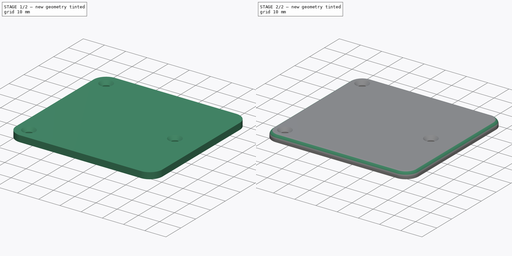
[diagram: build sequence overview — one tinted view per stage of 2, left to right]
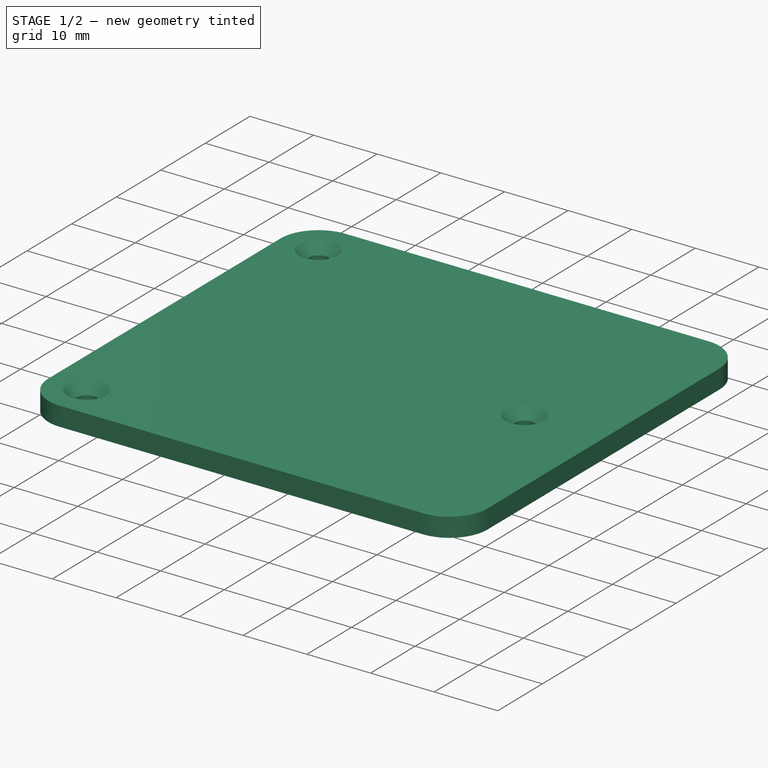
[diagram: stage 1 of 2 — iso view after this stage's code; geometry added in this stage tinted green]
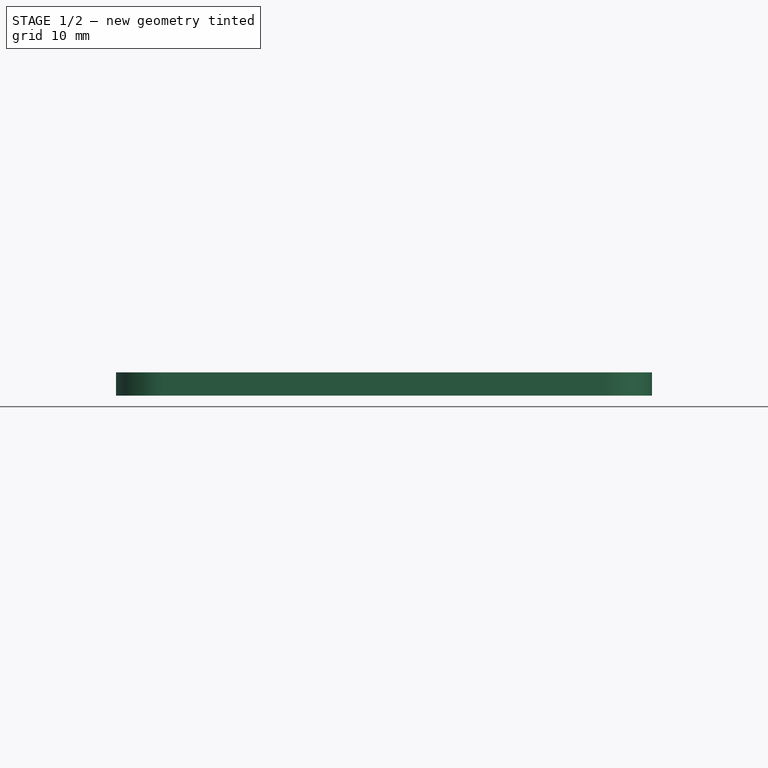
[diagram: stage 1 of 2 — front view after this stage's code; geometry added in this stage tinted green]
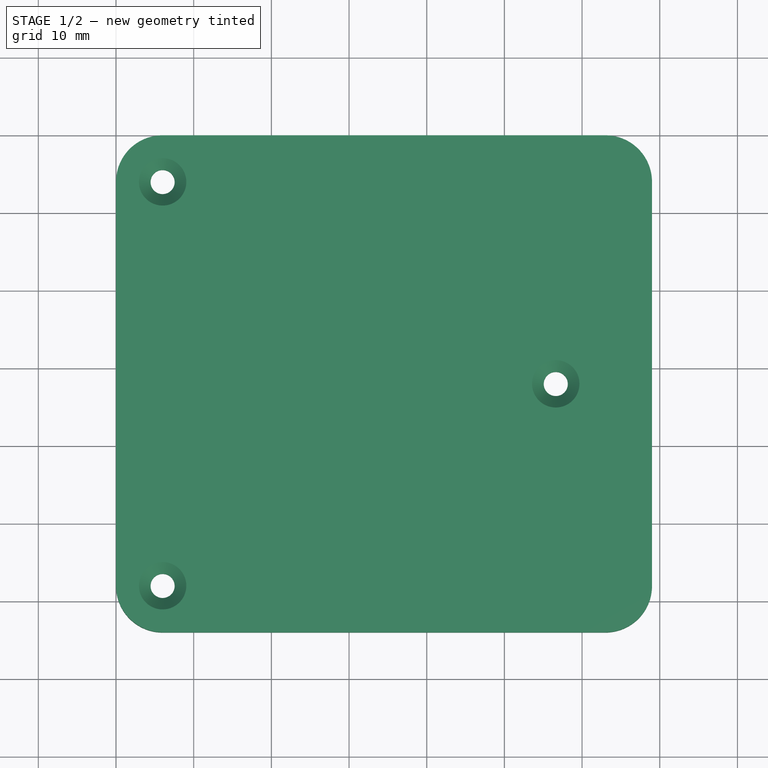
[diagram: stage 1 of 2 — top view after this stage's code; geometry added in this stage tinted green]
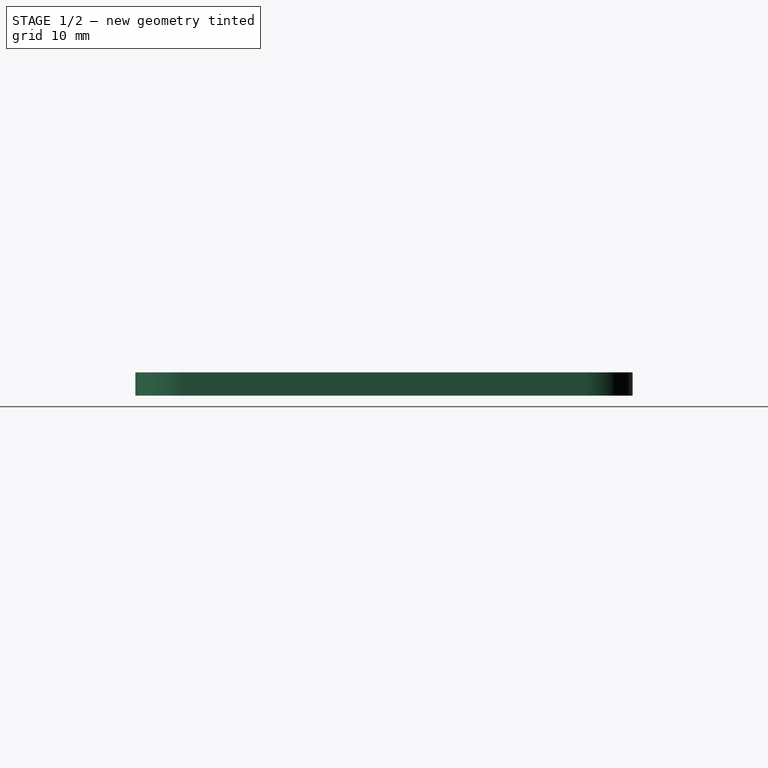
[diagram: stage 1 of 2 — right view after this stage's code; geometry added in this stage tinted green]
FCSTD DOCUMENT  (FreeCAD 0.21R33668 +26 (Git))
Label: Keystone Passthrough Lid
License: All rights reserved
LicenseURL: https://en.wikipedia.org/wiki/All_rights_reserved
objects: Sketcher::SketchObject×1, PartDesign::Pad×1, PartDesign::Chamfer×1, PartDesign::Fillet×1, PartDesign::Body×1, App::Part×1
note: 8 computed .brp shape members not serialized (recipe doc carries the construction recipe); baked Part::Feature solids carry a one-line shape summary decoded from their .brp

FEATURE [Sketcher::SketchObject] Sketch
  FullyConstrained = true
  MapMode = 5
  Support = -> [XY_Plane001]
  sketch-geometry (17):
    g0: ArcOfCircle CenterX=6 CenterY=-6 CenterZ=0 NormalX=0 NormalY=0 NormalZ=1 AngleXU=0 Radius=6 StartAngle=1.5708 EndAngle=3.14159
    g1: LineSegment StartX=6 StartY=0 StartZ=0 EndX=63 EndY=0 EndZ=0
    g2: ArcOfCircle CenterX=63 CenterY=-6 CenterZ=0 NormalX=0 NormalY=0 NormalZ=1 AngleXU=0 Radius=6 StartAngle=1e-16 EndAngle=1.5708
    g3: LineSegment StartX=69 StartY=-6 StartZ=0 EndX=69 EndY=-58 EndZ=0
    g4: ArcOfCircle CenterX=63 CenterY=-58 CenterZ=0 NormalX=0 NormalY=0 NormalZ=1 AngleXU=0 Radius=6 StartAngle=4.71239 EndAngle=6.28319
    g5: LineSegment StartX=63 StartY=-64 StartZ=0 EndX=6 EndY=-64 EndZ=0
    g6: ArcOfCircle CenterX=6 CenterY=-58 CenterZ=0 NormalX=0 NormalY=0 NormalZ=1 AngleXU=0 Radius=6 StartAngle=3.14159 EndAngle=4.71239
    g7: LineSegment StartX=0 StartY=-58 StartZ=0 EndX=0 EndY=-6 EndZ=0
    g8: GeomPoint X=0 Y=0 Z=0
    g9: GeomPoint X=69 Y=-64 Z=0
    g10: Circle CenterX=6 CenterY=-6 CenterZ=0 NormalX=0 NormalY=0 NormalZ=1 AngleXU=0 Radius=1.55
    g11: Circle CenterX=6 CenterY=-58 CenterZ=0 NormalX=0 NormalY=0 NormalZ=1 AngleXU=0 Radius=1.55
    g12: Circle CenterX=56.6124 CenterY=-32 CenterZ=0 NormalX=0 NormalY=0 NormalZ=1 AngleXU=0 Radius=1.55
    g13: LineSegment StartX=56.6124 StartY=-32 StartZ=0 EndX=6 EndY=-6 EndZ=0
    g14: LineSegment StartX=6 StartY=-58 StartZ=0 EndX=56.6124 EndY=-32 EndZ=0
    g15: LineSegment StartX=0 StartY=-6 StartZ=0 EndX=6 EndY=-6 EndZ=0
    g16: LineSegment StartX=0 StartY=-58 StartZ=0 EndX=6 EndY=-58 EndZ=0
  constraints (40):
    c: Tangent(g0,g1) = 1.5708
    c: Tangent(g1,g2) = 1.5708
    c: Tangent(g2,g3) = 1.5708
    c: Tangent(g3,g4) = 1.5708
    c: Tangent(g4,g5) = 1.5708
    c: Tangent(g5,g6) = 1.5708
    c: Tangent(g6,g7) = 1.5708
    c: Tangent(g7,g0) = 1.5708
    c: Horizontal(g1)
    c: Horizontal(g5)
    c: Vertical(g3)
    c: Vertical(g7)
    c: Equal(g0,g2)
    c: Equal(g2,g4)
    c: Equal(g4,g6)
    c: PointOnObject(g8,g1)
    c: PointOnObject(g8,g7)
    c: PointOnObject(g9,g3)
    c: PointOnObject(g9,g5)
    c: Coincident(g8,g-1)
    c: DistanceY(g11,g10) = 52
    c: Vertical(g11,g10)
    c: Coincident(g13,g12)
    c: Coincident(g13,g10)
    c: Coincident(g14,g11)
    c: Coincident(g14,g12)
    c: Equal(g13,g14)
    c: Distance(g13) = 56.9
    c: DistanceX(g0,g2) = 69
    c: DistanceX(g0,g10) = 6
    c: Coincident(g15,g0)
    c: Coincident(g15,g10)
    c: Coincident(g16,g6)
    c: Coincident(g16,g11)
    c: Equal(g15,g16)
    c: DistanceY(g5,g0) = 64
    c: Horizontal(g15)
    c: Diameter(g10) = 3.1
    c: Diameter(g12) = 3.1
    c: Diameter(g11) = 3.1
FEATURE [PartDesign::Pad] Pad
  Direction = (0,0,1)
  Length = 3
  Length2 = 10
  Profile = -> Sketch
  ReferenceAxis = -> Sketch [N_Axis]
  Type = 0
FEATURE [PartDesign::Chamfer] Chamfer
  Angle = 45
  Base = -> Pad [Edge30,Edge27,Edge33]
  BaseFeature = -> Pad
  ChamferType = 0
  FlipDirection = false
  Size = 1.5
  Size2 = 1
  SupportTransform = false
  UseAllEdges = false
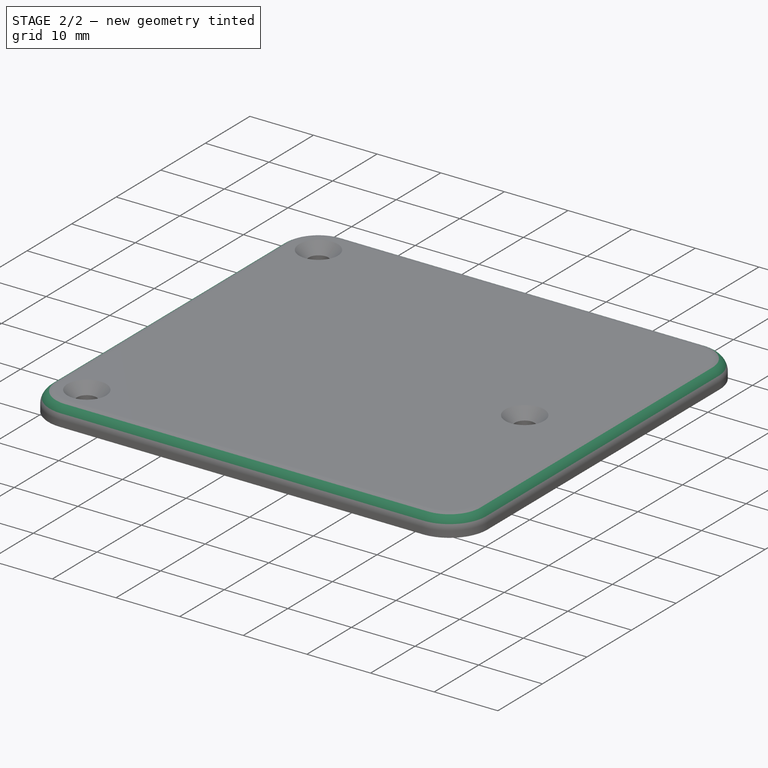
[diagram: stage 2 of 2 — iso view after this stage's code; geometry added in this stage tinted green]
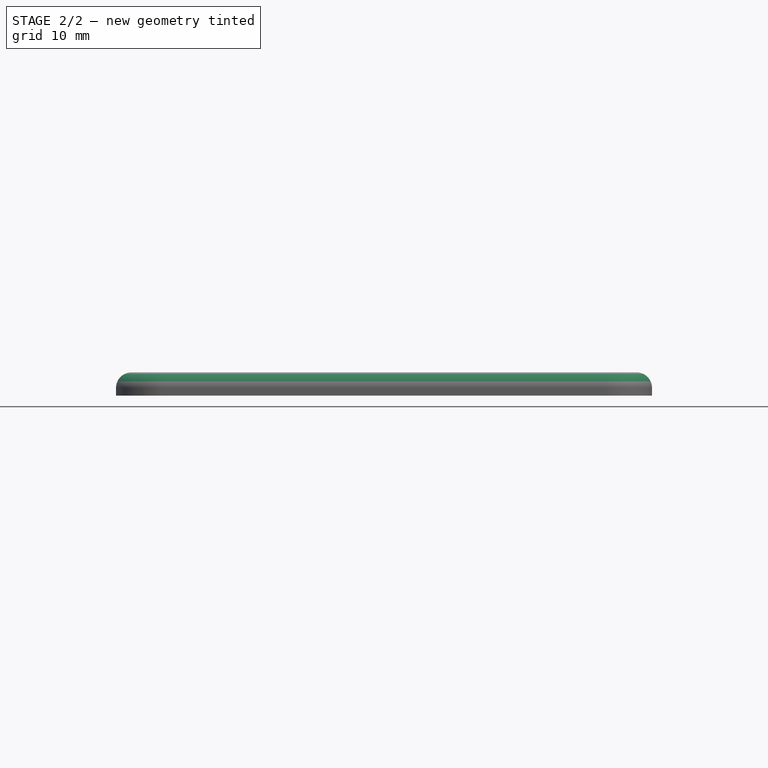
[diagram: stage 2 of 2 — front view after this stage's code; geometry added in this stage tinted green]
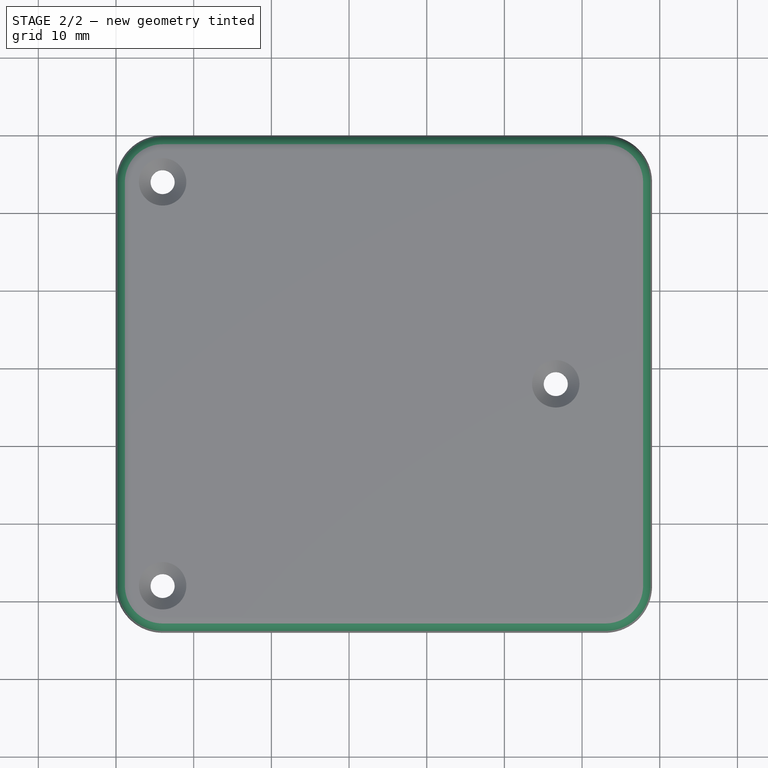
[diagram: stage 2 of 2 — top view after this stage's code; geometry added in this stage tinted green]
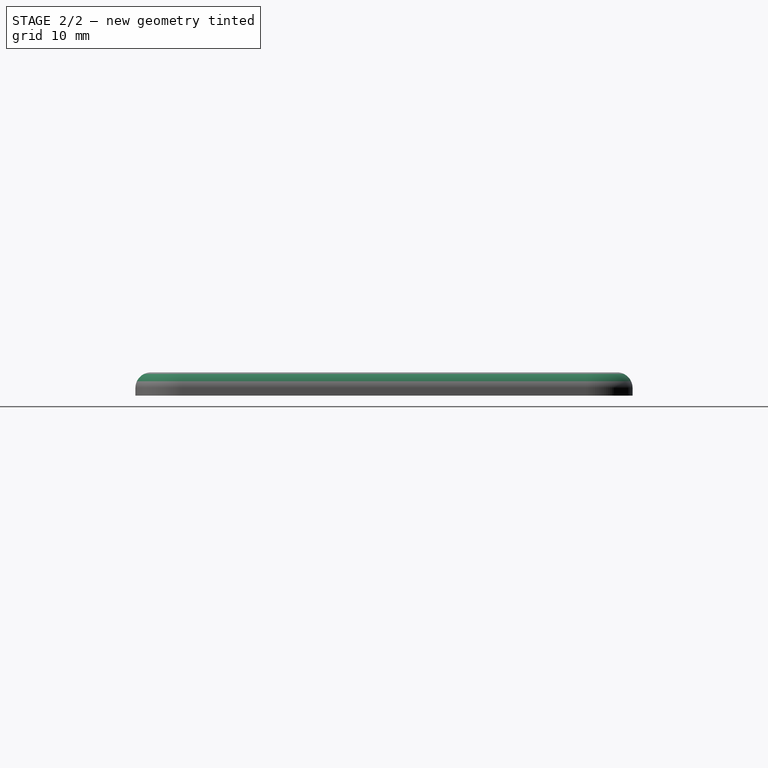
[diagram: stage 2 of 2 — right view after this stage's code; geometry added in this stage tinted green]
FEATURE [PartDesign::Fillet] Fillet
  Base = -> Chamfer [Edge22]
  BaseFeature = -> Chamfer
  Radius = 2
  SupportTransform = false
  UseAllEdges = false
FEATURE [PartDesign::Body] Body
  Group = -> [Sketch,Pad,Chamfer,Fillet]
  Origin = -> Origin001
  Tip = -> Fillet
FEATURE [App::Part] Part
  Group = -> [Body]
  Origin = -> Origin
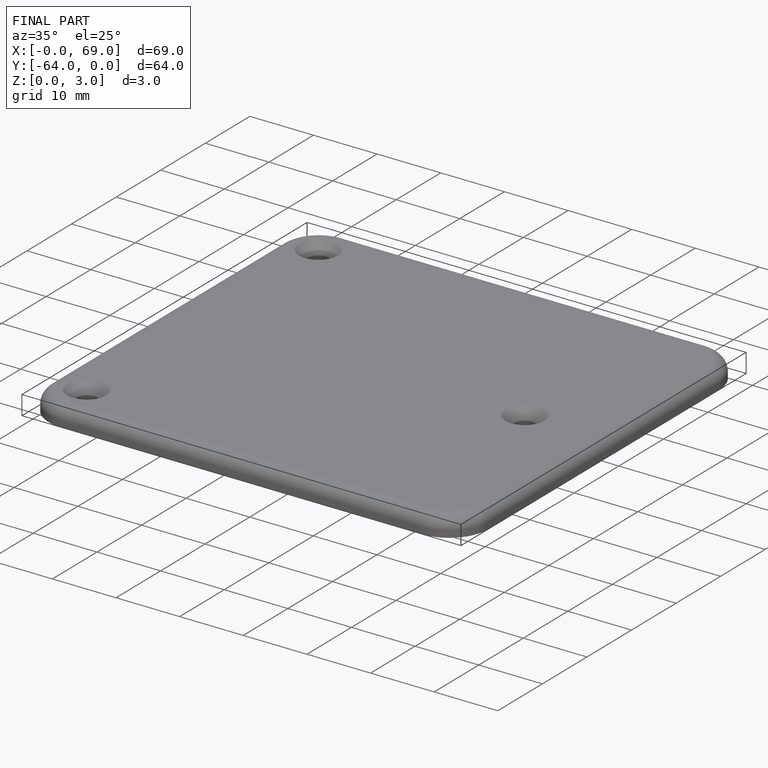
[diagram: finished part — iso view with bounding-box wireframe]
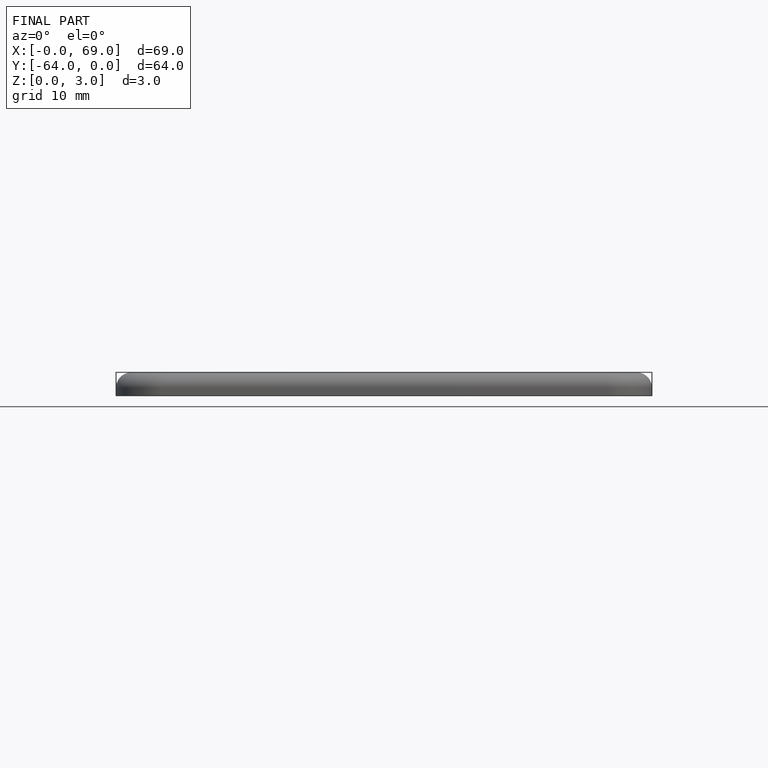
[diagram: finished part — front view with bounding-box wireframe]
